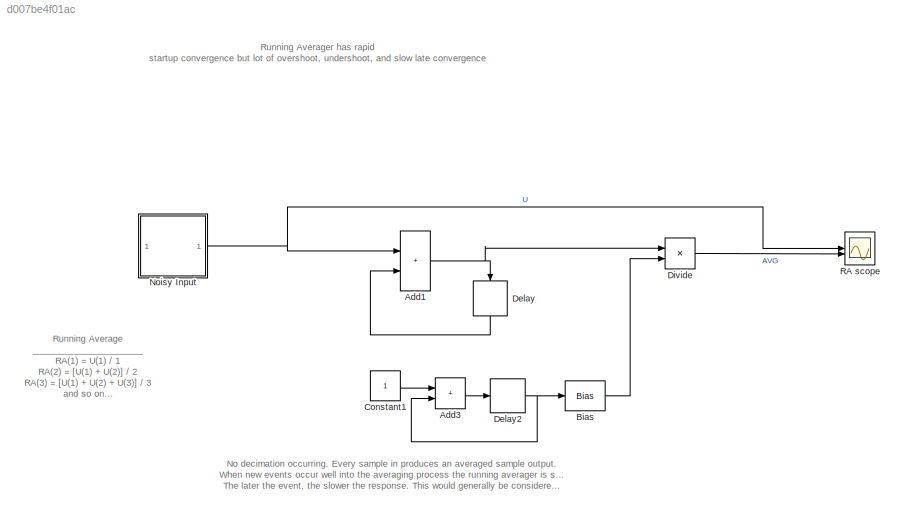
MODEL slx_d007be4f01ac
KIND model
CONFIG AbsTol = auto
CONFIG EnableMultiTasking = off
CONFIG FixedStep = auto
CONFIG MaxStep = auto
CONFIG MinStep = auto
CONFIG RelTol = 1e-3
CONFIG SampleTimeConstraint = Unconstrained
CONFIG SolverName = VariableStepAuto
CONFIG StartTime = 0.0
CONFIG StopTime = 2000
BLOCK [Sum] Add1
  IconShape = rectangular
BLOCK [Sum] Add3
  IconShape = rectangular
BLOCK [Bias] Bias
  Bias = 1
  SaturateOnIntegerOverflow = off
BLOCK [Constant] Constant1
BLOCK [Delay] Delay
  DelayLength = 1
  InputPortMap = u0
  NameLocation = left
BLOCK [Delay] Delay2
  DelayLength = 1
  InitialCondition = 0
  InputPortMap = u0
BLOCK [Product] Divide
  Inputs = */
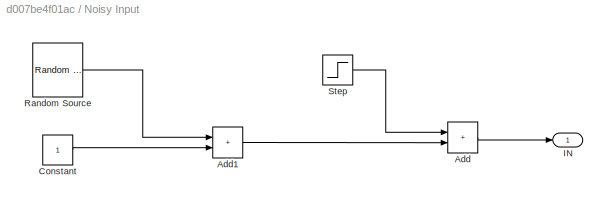
BLOCK [SubSystem] Noisy Input
BLOCK [Sum] Noisy Input/Add
  IconShape = rectangular
BLOCK [Sum] Noisy Input/Add1
  IconShape = rectangular
BLOCK [Constant] Noisy Input/Constant
  SampleTime = 1
BLOCK [Outport] Noisy Input/IN
  VectorParamsAs1DForOutWhenUnconnected = off
BLOCK [Reference] Noisy Input/Random Source  REF=dspsrcs4/Random
Source
  SourceBlock = dspsrcs4/Random\nSource
  SourceType = dsp.simulink.RandomSource
BLOCK [Step] Noisy Input/Step
  SampleTime = 0
  Time = 500
BLOCK [Scope] RA scope
  Floating = off
  NumInputPorts = 2
  ScopeSpecificationString = Simulink.scopes.TimeScopeBlockCfg('CurrentConfiguration', extmgr.ConfigurationSet(extmgr.Configuration('Core','General UI',true),extmgr.Configuration('Core','Source UI',true),extmgr.Configuration('Sources','WiredSimulink',true),extmgr.Configuration('Visuals','Time Domain',true,'SerializedDisplays',{struct('MinYLimReal','-0.91369','MaxYLimReal','3.97383','YLabelReal','','MinYLimMag','0.00000','MaxY...<+2231ch>
ANNOTATION (root): Running Averager has rapid startup convergence but lot of overshoot, undershoot, and slow late convergence
ANNOTATION (root): No decimation occurring. Every sample in produces an averaged sample output. When new events occur well into the averaging process the running averager is slow to respond. The later the event, the slower the response. This would generally be considered trait in an averager.
ANNOTATION (root): Running Average ______________________ RA(1) = U(1) / 1 RA(2) = [U(1) + U(2)] / 2 RA(3) = [U(1) + U(2) + U(3)] / 3 and so on...
NET Add1:1 -> Delay:1, Divide:1
LINE Add3:1 -> Delay2:1
LINE Bias:1 -> Divide:2
LINE Constant1:1 -> Add3:1
NET Delay2:1 -> Add3:2, Bias:1
LINE Delay:1 -> Add1:2
LINE Divide:1 -> RA scope:2
LINE Noisy Input/Add1:1 -> Noisy Input/Add:2
LINE Noisy Input/Add:1 -> Noisy Input/IN:1
LINE Noisy Input/Constant:1 -> Noisy Input/Add1:2
LINE Noisy Input/Random Source:1 -> Noisy Input/Add1:1
LINE Noisy Input/Step:1 -> Noisy Input/Add:1
NET Noisy Input:1 -> Add1:1, RA scope:1
note: NET lines group one-source signal fan-out (src -> all destinations, sorted); 1:1 wires keep LINE
